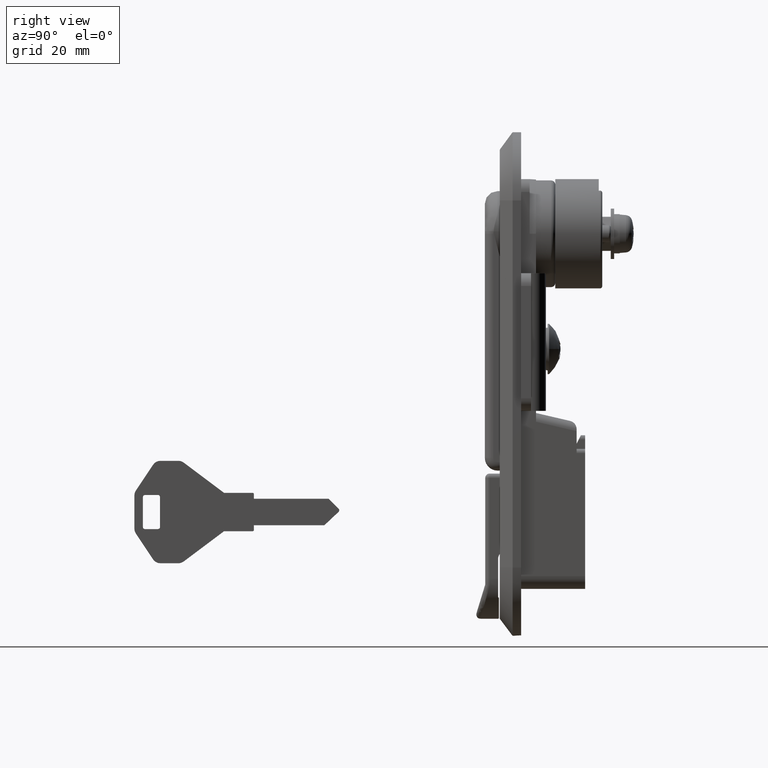
[diagram: clean part render]
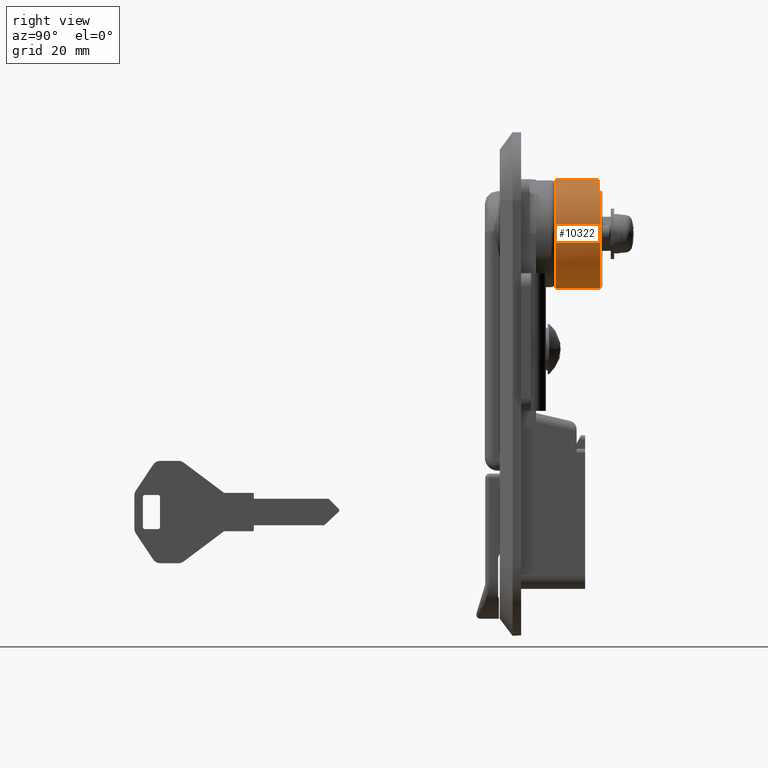
[diagram: same view with one face highlighted and labeled with its STEP entity id]
A machine part, right view. The second image highlights one B-rep face of the part: STEP entity #10322.
In plain terms, the highlighted cylindrical surface (partial cylindrical patch) has radius 12.8 mm, axis along (0, -1, 0).
Its self-contained STEP definition (entity closure, byte-faithful):
#1346 = DIRECTION ( 'NONE',  ( -1.000000000000000000, 0.0000000000000000000, 0.0000000000000000000 ) ) ;
#1347 = VECTOR ( 'NONE', #1346, 1000.000000000000000 ) ;
#1348 = CARTESIAN_POINT ( 'NONE',  ( 1023.200000000000200, -8.135593209581678300, 9.881909139476009700 ) ) ;
#1349 = LINE ( 'NONE', #1348, #1347 ) ;
#1350 = CARTESIAN_POINT ( 'NONE',  ( 23.19999999999999900, -8.135593209581678300, 9.881909139476009700 ) ) ;
#1367 = CARTESIAN_POINT ( 'NONE',  ( 23.50000000000000000, 1.567547902908612200E-015, -12.79999999999998600 ) ) ;
#1426 = CARTESIAN_POINT ( 'NONE',  ( 23.50000000000000000, -8.135593209581678300, 9.881909139476009700 ) ) ;
#1532 = DIRECTION ( 'NONE',  ( 0.0000000000000000000, 0.0000000000000000000, 1.000000000000000000 ) ) ;
#1533 = DIRECTION ( 'NONE',  ( 1.000000000000000000, 0.0000000000000000000, 0.0000000000000000000 ) ) ;
#1534 = CARTESIAN_POINT ( 'NONE',  ( 23.19999999999999900, 0.0000000000000000000, 1.421085471520200100E-014 ) ) ;
#1535 = AXIS2_PLACEMENT_3D ( 'NONE', #1534, #1533, #1532 ) ;
#1536 = CIRCLE ( 'NONE', #1535, 12.80000000000000100 ) ;
#1600 = CIRCLE ( 'NONE', #1665, 12.80000000000000100 ) ;
#1601 = DIRECTION ( 'NONE',  ( 0.0000000000000000000, 0.0000000000000000000, 1.000000000000000000 ) ) ;
#1602 = DIRECTION ( 'NONE',  ( -1.000000000000000000, 0.0000000000000000000, 0.0000000000000000000 ) ) ;
#1603 = CARTESIAN_POINT ( 'NONE',  ( 1012.999999999999900, 0.0000000000000000000, 1.421085471520200100E-014 ) ) ;
#1604 = AXIS2_PLACEMENT_3D ( 'NONE', #1603, #1602, #1601 ) ;
#1605 = CYLINDRICAL_SURFACE ( 'NONE', #1604, 12.80000000000000100 ) ;
#1606 = FACE_OUTER_BOUND ( 'NONE', #10323, .T. ) ;
#1629 = DIRECTION ( 'NONE',  ( 0.0000000000000000000, 0.0000000000000000000, 1.000000000000000000 ) ) ;
#1630 = DIRECTION ( 'NONE',  ( 1.000000000000000000, 0.0000000000000000000, 0.0000000000000000000 ) ) ;
#1631 = CARTESIAN_POINT ( 'NONE',  ( 13.00000000000000000, 0.0000000000000000000, 1.421085471520200100E-014 ) ) ;
#1632 = AXIS2_PLACEMENT_3D ( 'NONE', #1631, #1630, #1629 ) ;
#1633 = CIRCLE ( 'NONE', #1632, 12.80000000000000100 ) ;
#1662 = DIRECTION ( 'NONE',  ( 0.0000000000000000000, 0.0000000000000000000, 1.000000000000000000 ) ) ;
#1663 = DIRECTION ( 'NONE',  ( -1.000000000000000000, 0.0000000000000000000, 0.0000000000000000000 ) ) ;
#1664 = CARTESIAN_POINT ( 'NONE',  ( 23.50000000000000000, 0.0000000000000000000, 1.421085471520200100E-014 ) ) ;
#1665 = AXIS2_PLACEMENT_3D ( 'NONE', #1664, #1663, #1662 ) ;
#3492 = CARTESIAN_POINT ( 'NONE',  ( 23.19999999999999900, 0.0000000000000000000, 12.80000000000001500 ) ) ;
#3493 = CARTESIAN_POINT ( 'NONE',  ( 13.00000000000000000, 0.0000000000000000000, 12.80000000000001500 ) ) ;
#3494 = DIRECTION ( 'NONE',  ( -1.000000000000000000, 0.0000000000000000000, 0.0000000000000000000 ) ) ;
#3495 = VECTOR ( 'NONE', #3494, 1000.000000000000000 ) ;
#3496 = CARTESIAN_POINT ( 'NONE',  ( 1012.999999999999900, 0.0000000000000000000, 12.80000000000001500 ) ) ;
#3497 = LINE ( 'NONE', #3496, #3495 ) ;
#3542 = CARTESIAN_POINT ( 'NONE',  ( 13.00000000000000000, 1.567547902908612200E-015, -12.79999999999998600 ) ) ;
#3543 = DIRECTION ( 'NONE',  ( -1.000000000000000000, 0.0000000000000000000, 0.0000000000000000000 ) ) ;
#3544 = VECTOR ( 'NONE', #3543, 1000.000000000000000 ) ;
#3545 = CARTESIAN_POINT ( 'NONE',  ( 1012.999999999999900, 1.567547902908612200E-015, -12.79999999999998600 ) ) ;
#3546 = LINE ( 'NONE', #3545, #3544 ) ;
#10170 = VERTEX_POINT ( 'NONE', #1367 ) ;
#10178 = VERTEX_POINT ( 'NONE', #1350 ) ;
#10180 = EDGE_CURVE ( 'NONE', #10202, #10178, #1349, .T. ) ;
#10202 = VERTEX_POINT ( 'NONE', #1426 ) ;
#10249 = ORIENTED_EDGE ( 'NONE', *, *, #10250, .F. ) ;
#10250 = EDGE_CURVE ( 'NONE', #14088, #10178, #1536, .T. ) ;
#10251 = ORIENTED_EDGE ( 'NONE', *, *, #14083, .T. ) ;
#10306 = ORIENTED_EDGE ( 'NONE', *, *, #10307, .T. ) ;
#10307 = EDGE_CURVE ( 'NONE', #14085, #14096, #1633, .T. ) ;
#10322 = ADVANCED_FACE ( 'NONE', ( #1606 ), #1605, .T. ) ;
#10323 = EDGE_LOOP ( 'NONE', ( #10324, #10325, #10327, #10249, #10251, #10306 ) ) ;
#10324 = ORIENTED_EDGE ( 'NONE', *, *, #14094, .F. ) ;
#10325 = ORIENTED_EDGE ( 'NONE', *, *, #10326, .T. ) ;
#10326 = EDGE_CURVE ( 'NONE', #10170, #10202, #1600, .T. ) ;
#10327 = ORIENTED_EDGE ( 'NONE', *, *, #10180, .T. ) ;
#14083 = EDGE_CURVE ( 'NONE', #14088, #14085, #3497, .T. ) ;
#14085 = VERTEX_POINT ( 'NONE', #3493 ) ;
#14088 = VERTEX_POINT ( 'NONE', #3492 ) ;
#14094 = EDGE_CURVE ( 'NONE', #10170, #14096, #3546, .T. ) ;
#14096 = VERTEX_POINT ( 'NONE', #3542 ) ;